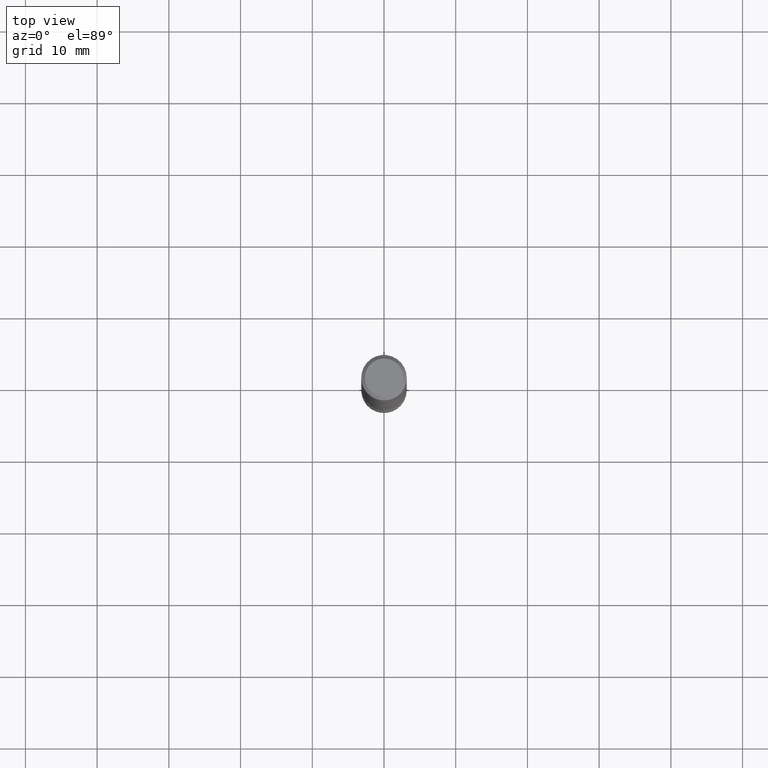
[diagram: clean part render]
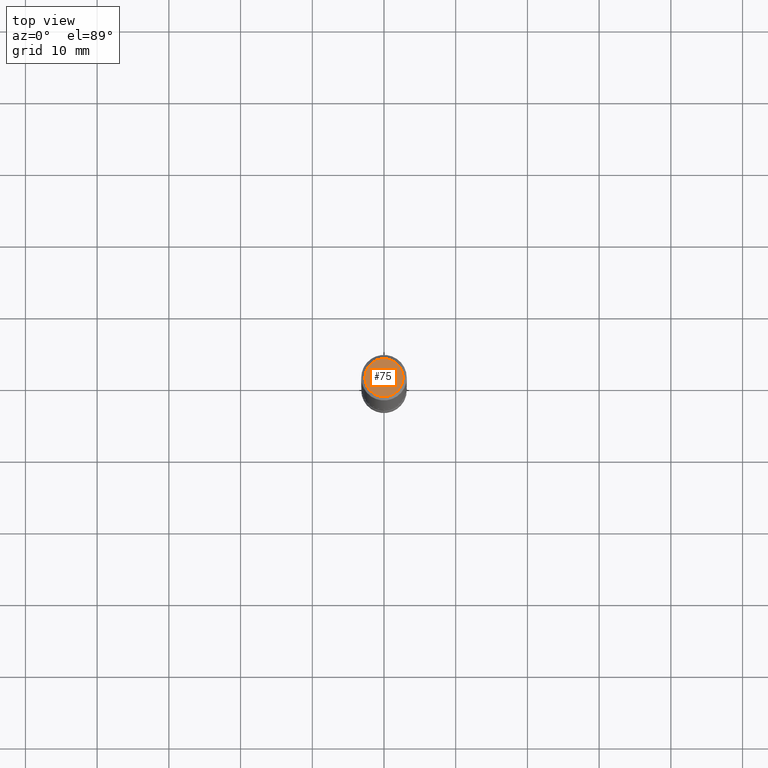
[diagram: same view with one face highlighted and labeled with its STEP entity id]
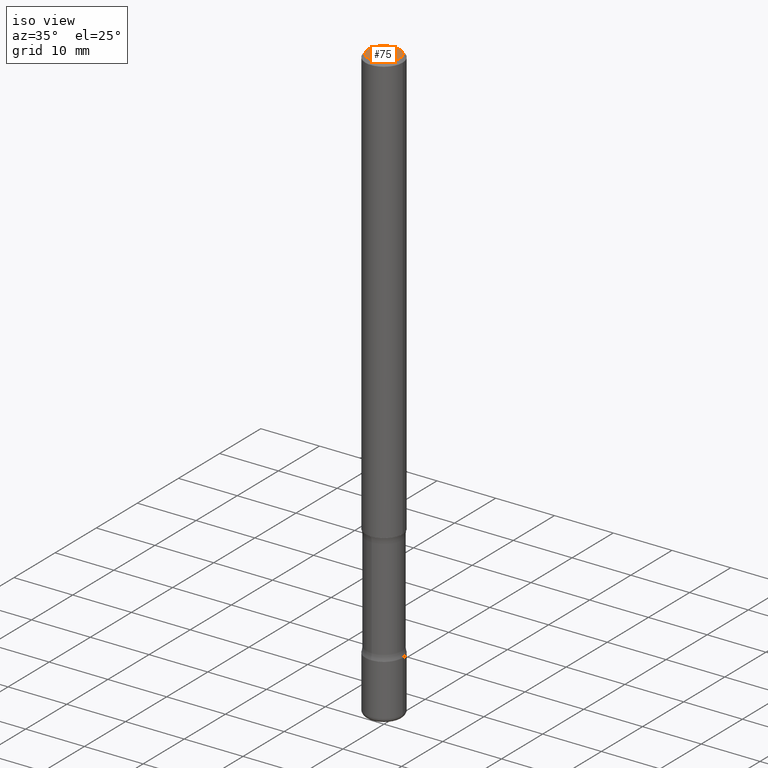
[diagram: same view with one face highlighted and labeled with its STEP entity id]
A machine part, top view. The second image highlights one B-rep face of the part: STEP entity #75.
A second angle (iso view) of the same face is appended — the face is thin or edge-on in the first view.
In plain terms, the highlighted planar face has unit normal (0, -0, -1).
Its self-contained STEP definition (entity closure, byte-faithful):
#6 = EDGE_LOOP ( 'NONE', ( #233, #529 ) ) ;
#11 = EDGE_CURVE ( 'NONE', #224, #275, #52, .T. ) ;
#17 = AXIS2_PLACEMENT_3D ( 'NONE', #156, #325, #409 ) ;
#34 = FACE_OUTER_BOUND ( 'NONE', #6, .T. ) ;
#44 = CARTESIAN_POINT ( 'NONE',  ( -0.1050000000000003847, 7.681258945454915470E-16, -4.695363739110977184E-17 ) ) ;
#52 = CIRCLE ( 'NONE', #17, 0.1050000000000003847 ) ;
#75 = ADVANCED_FACE ( 'NONE', ( #34 ), #502, .F. ) ;
#123 = CARTESIAN_POINT ( 'NONE',  ( 7.332110811570605881E-16, 0.1050000000000003847, -3.900823592740838734E-16 ) ) ;
#156 = CARTESIAN_POINT ( 'NONE',  ( 1.148236555768741665E-45, -1.639377487418492057E-31, -4.695363739110452099E-17 ) ) ;
#164 = EDGE_CURVE ( 'NONE', #275, #224, #207, .T. ) ;
#176 = DIRECTION ( 'NONE',  ( 1.000000000000000000, -6.982962677686266711E-15, 4.874400871621220839E-29 ) ) ;
#207 = CIRCLE ( 'NONE', #553, 0.1050000000000003847 ) ;
#224 = VERTEX_POINT ( 'NONE', #255 ) ;
#225 = CARTESIAN_POINT ( 'NONE',  ( 1.148236555768741665E-45, -1.639377487418492057E-31, -4.695363739110452099E-17 ) ) ;
#233 = ORIENTED_EDGE ( 'NONE', *, *, #164, .T. ) ;
#254 = DIRECTION ( 'NONE',  ( -1.000000000000000000, 6.982962677686265922E-15, -4.876176775795935793E-29 ) ) ;
#255 = CARTESIAN_POINT ( 'NONE',  ( 0.1050000000000003847, -8.238720831321601296E-16, -4.695363739109907908E-17 ) ) ;
#259 = DIRECTION ( 'NONE',  ( -2.445468806185136597E-29, 3.491481338843145583E-15, 1.000000000000000000 ) ) ;
#275 = VERTEX_POINT ( 'NONE', #44 ) ;
#325 = DIRECTION ( 'NONE',  ( -2.445468806185136597E-29, 3.491481338843145583E-15, 1.000000000000000000 ) ) ;
#409 = DIRECTION ( 'NONE',  ( 1.000000000000000000, -6.982962677686266711E-15, 4.874400871621220839E-29 ) ) ;
#454 = AXIS2_PLACEMENT_3D ( 'NONE', #123, #463, #254 ) ;
#463 = DIRECTION ( 'NONE',  ( 2.438088387897960049E-29, -3.491481338843145188E-15, -1.000000000000000000 ) ) ;
#502 = PLANE ( 'NONE',  #454 ) ;
#529 = ORIENTED_EDGE ( 'NONE', *, *, #11, .T. ) ;
#553 = AXIS2_PLACEMENT_3D ( 'NONE', #225, #259, #176 ) ;